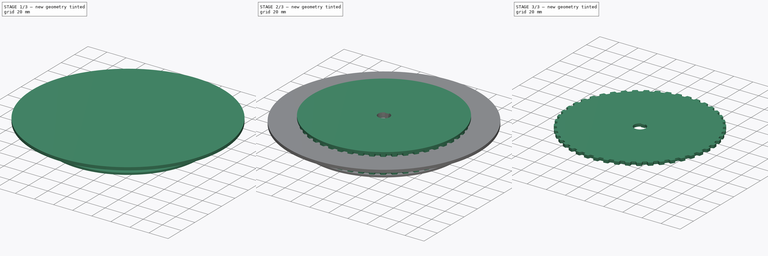
[diagram: build sequence overview — one tinted view per stage of 3, left to right]
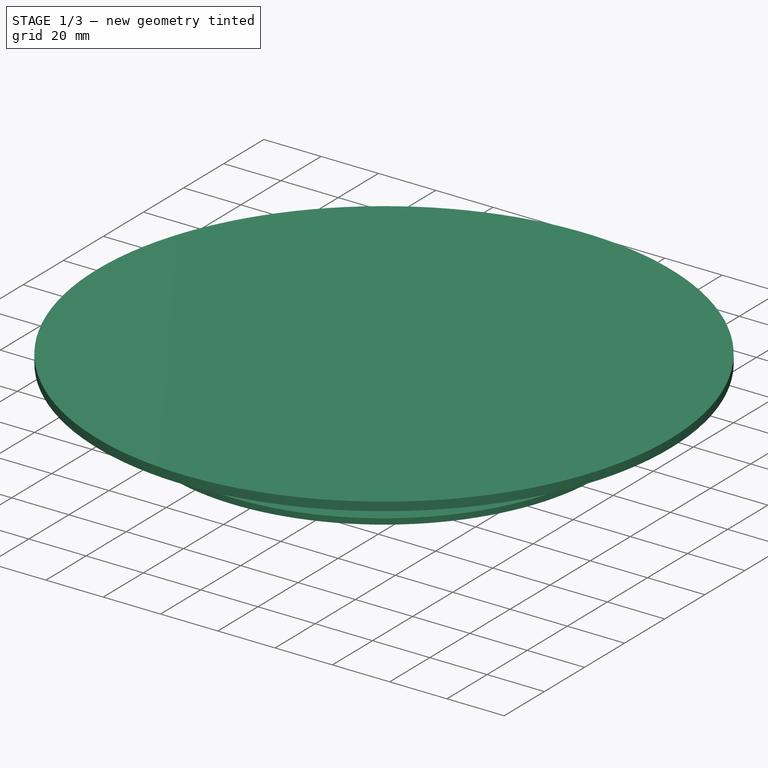
[diagram: stage 1 of 3 — iso view after this stage's code; geometry added in this stage tinted green]
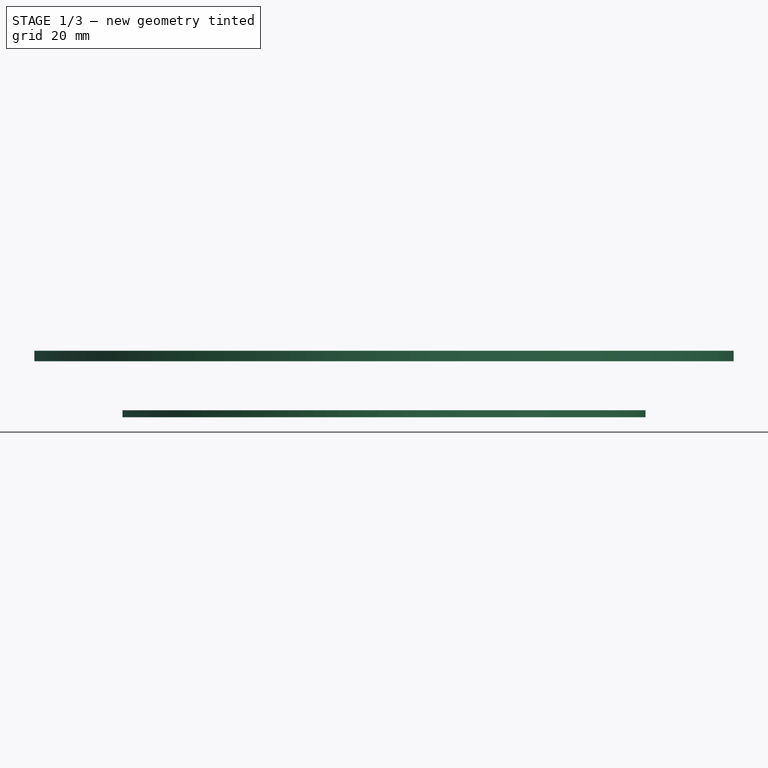
[diagram: stage 1 of 3 — front view after this stage's code; geometry added in this stage tinted green]
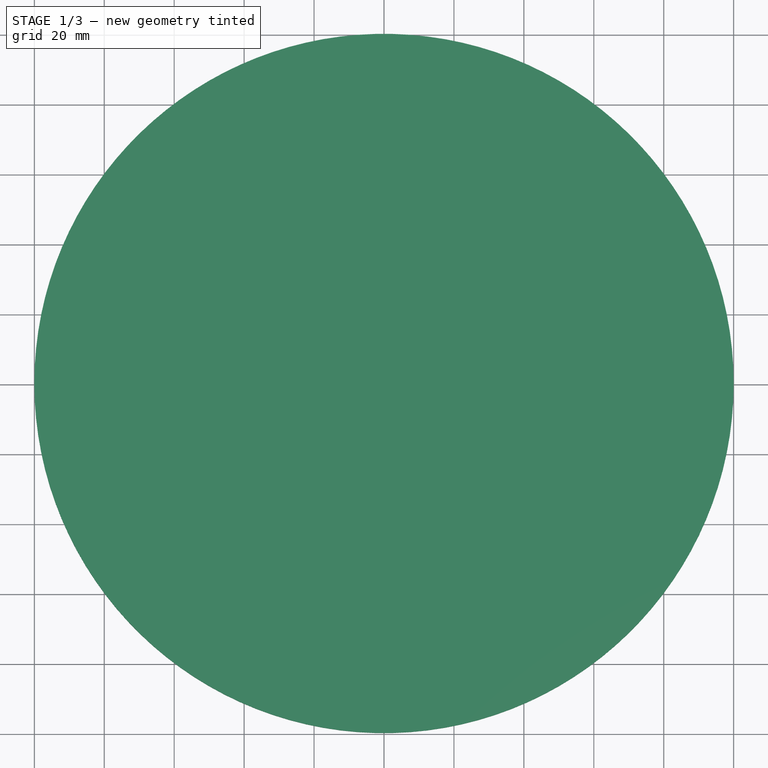
[diagram: stage 1 of 3 — top view after this stage's code; geometry added in this stage tinted green]
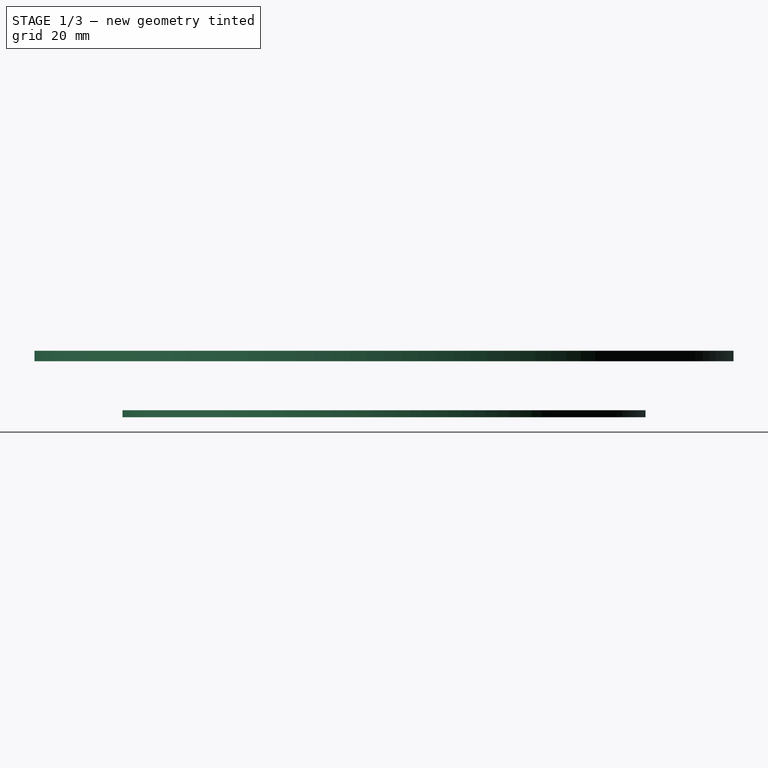
[diagram: stage 1 of 3 — right view after this stage's code; geometry added in this stage tinted green]
FCSTD DOCUMENT  (FreeCAD 0.21R31917 (Git))
Label: gear
License: All rights reserved
LicenseURL: http://en.wikipedia.org/wiki/All_rights_reserved
objects: Sketcher::SketchObject×6, Part::FeaturePython×3, PartDesign::Pad×2, Part::Compound×1, PartDesign::SubShapeBinder×1, PartDesign::LinearPattern×1, PartDesign::Pocket×1, PartDesign::Hole×1, PartDesign::Body×1, Part::Cylinder×1, Part::MultiCommon×1
note: 23 computed .brp shape members not serialized (recipe doc carries the construction recipe); baked Part::Feature solids carry a one-line shape summary decoded from their .brp

FEATURE [Sketcher::SketchObject] Sketch
  FullyConstrained = true
  MapMode = 5
  sketch-geometry (7):
    g0: LineSegment StartX=0 StartY=4.5 StartZ=0 EndX=1.74007 EndY=4.5 EndZ=0
    g1: LineSegment StartX=1.74007 StartY=4.5 StartZ=0 EndX=2.65 EndY=2 EndZ=0
    g2: LineSegment StartX=2.65 StartY=2 StartZ=0 EndX=5 EndY=2 EndZ=0
    g3: LineSegment StartX=5 StartY=2 StartZ=0 EndX=5 EndY=0 EndZ=0
    g4: LineSegment StartX=5 StartY=0 StartZ=0 EndX=0 EndY=0 EndZ=0
    g5: GeomPoint X=-2.65 Y=2 Z=0
    g6: GeomPoint X=-5 Y=0 Z=0
  constraints (17):
    c: PointOnObject(g0,g-2)
    c: Horizontal(g0)
    c: Coincident(g1,g0)
    c: Coincident(g2,g1)
    c: Horizontal(g2)
    c: Coincident(g3,g2)
    c: PointOnObject(g3,g-1)
    c: Vertical(g3)
    c: Coincident(g4,g3)
    c: Coincident(g4,g-1)
    c: Angle(g-2,g1) = 0.349066
    c: Symmetric(g1,g5,g-2)
    c: DistanceX(g5,g1) = 5.3
    c: DistanceY(g1,g0) = 2.5
    c: DistanceY(g0) = 4.5
    c: Symmetric(g6,g3,g-2)
    c: DistanceX(g6,g3) = 10
FEATURE [Part::FeaturePython] Mirror  label="Mirror of Sketch"  # WARN: FeaturePython — macro-defined, semantics opaque (R4)
  ExposePlacement = false
  FlipX = true
  FlipY = false
  FlipZ = false
  MarkerShape = 1
  MarkerSize = 0
  NumElements = 0
  Object = -> Sketch
  ObjectTraversal = 0
  Type = lattice2Mirror.LatticeMirror
  isLattice = 0
FEATURE [Part::Compound] Compound
  Links = -> [Sketch,Mirror]
FEATURE [Sketcher::SketchObject] Sketch001  label="teeth_sketch"
  FullyConstrained = true
  MapMode = 5
  expr: .Constraints.angle = 360deg / <<TeethArray>>.Count
  expr: .Constraints.r = 10mm / (.Constraints.angle / 180deg * pi)
  sketch-geometry (10):
    g0: LineSegment StartX=0 StartY=0 StartZ=0 EndX=9.83695 EndY=73.1443 EndZ=0
    g1: ArcOfCircle CenterX=0 CenterY=0 CenterZ=0 NormalX=0 NormalY=0 NormalZ=1 AngleXU=0 Radius=73.8028 StartAngle=1.43711 EndAngle=1.5708
    g2: ArcOfCircle CenterX=0 CenterY=0 CenterZ=0 NormalX=0 NormalY=0 NormalZ=1 AngleXU=0 Radius=73.8028 StartAngle=1.54122 EndAngle=1.5708
    g3: ArcOfCircle CenterX=0 CenterY=0 CenterZ=0 NormalX=0 NormalY=0 NormalZ=1 AngleXU=0 Radius=73.8028 StartAngle=1.43711 EndAngle=1.46668
    g4: LineSegment StartX=2.1822 StartY=73.7706 StartZ=0 EndX=2.95275 EndY=71.1132 EndZ=0
    g5: LineSegment StartX=2.95275 StartY=71.1132 StartZ=0 EndX=6.55205 EndY=70.8722 EndZ=0
    g6: LineSegment StartX=6.55205 StartY=70.8722 StartZ=0 EndX=7.66992 EndY=73.4032 EndZ=0
    g7: LineSegment StartX=4.7524 StartY=70.9927 StartZ=0 EndX=4.92948 EndY=73.638 EndZ=0
    g8: LineSegment StartX=2.1822 StartY=73.7706 StartZ=0 EndX=7.66992 EndY=73.4032 EndZ=0
    g9: GeomPoint X=0 Y=74.8028 Z=0
  constraints (27):
    c: Coincident(g0,g-1)
    c: Coincident(g1,g0)
    c: Coincident(g1,g0)
    c: PointOnObject(g1,g-2)
    c: Coincident(g2,g0)
    c: Coincident(g2,g1)
    c: Coincident(g3,g2)
    c: Coincident(g3,g0)
    c: Coincident(g4,g2)
    c: Coincident(g5,g4)
    c: Coincident(g6,g5)
    c: Coincident(g6,g3)
    c: Angle(g6,g4) = 0.698132
    c: PointOnObject(g7,g1)
    c: Symmetric(g5,g4,g7)
    c: Perpendicular(g7,g5)
    c: Equal(g6,g4)
    c: Distance(g3,g2) = 5.5
    c: Coincident(g8,g2)
    c: Coincident(g8,g3)
    c: Distance(g7,g8) = 2.6
    c: Symmetric(g3,g2,g7)
    c: Angle(g0,g-2) = 0.133685  'angle'
    c: Distance(g3,g2) = 9.85897
    c: PointOnObject(g9,g-2)
    c: DistanceY(g9) = 74.8028  'r'
    c: DistanceY(g2,g9) = 1
FEATURE [Part::FeaturePython] PolarArray  label="TeethArray"  # WARN: FeaturePython — macro-defined, semantics opaque (R4)
  Alignment = 0
  AttacherType = Attacher::AttachEngine3D
  CellStart = A1
  Count = 47
  DistributionLaw = 0
  EndInclusive = false
  ExposePlacement = false
  FlipX = false
  FlipZ = false
  GeneratorMode = 0
  MarkerShape = 1
  MarkerSize = 0
  NumElements = 47
  OrientMode = 2
  Radius = 25
  Reverse = false
  SpanEnd = 360
  SpanStart = 0
  Step = 7.65957
  Type = lattice2PolarArray2.PolarArray
  UseArcRadius = false
  UseArcRange = 0
  VSGVersion = 1
  Values = 0.0 | 7.659574468085107 | 15.319148936170214 | 22.97872340425532 | 30.638297872340427 | 38.297872340425535 | 45.95744680851064 | 53.61702127659575 | 61.276595744680854 | 68.93617021276596 | 76.59574468085107 | 84.25531914893618 | 91.91489361702128 | 99.57446808510639 | 107.2340425531915 | 114.8936170212766 | 122.55319148936171 | 130.2127659574468 | 137.87234042553192 | 145.53191489361703 | 153.19148936170214 | 160.85106382978725 | 168.51063829787236 | 176.17021276595744 | 183.82978723404256 | 191.48936170212767 | 199.14893617021278 | 206.8085106382979 | 214.468085106383 | 222.12765957446808 | 229.7872340425532 | 237.4468085106383 | 245.10638297872342 | 252.76595744680853 | 260.4255319148936 | 268.0851063829787 | 275.74468085106383 | 283.40425531914894 | 291.06382978723406 | 298.72340425531917 | 306.3829787234043 | 314.0425531914894 | 321.7021276595745 | 329.3617021276596 | 337.0212765957447 | 344.6808510638298 | 352.3404255319149
  ValuesSource = 2
  isLattice = 1
FEATURE [Part::FeaturePython] Populate  label="Populate PolarArray with Sketch001"  # WARN: FeaturePython — macro-defined, semantics opaque (R4)
  Copying = 0
  ExposePlacement = false
  MarkerShape = 1
  MarkerSize = 0
  NumElements = 0
  Object = -> Sketch001
  OutputCompounding = 1
  PlacementsTo = -> PolarArray
  Referencing = 1
  Type = lattice2PopulateCopies.LatticePopulateCopies
  isLattice = 0
FEATURE [PartDesign::SubShapeBinder] Binder
  BindCopyOnChange = 0
  BindMode = 0
  ClaimChildren = false
  Context = -> Body [Binder.]
  Fuse = false
  MakeFace = true
  OffsetFill = false
  OffsetIntersection = false
  OffsetJoinType = 0
  OffsetOpenResult = false
  PartialLoad = false
  Placement = pos=(0,0,2) rot=(0,0,1;0rad)
  Relative = false
  Support = -> [Populate]
  _Version = 2
  expr: .Placement.Base.z = Pad001.Length
FEATURE [Sketcher::SketchObject] Sketch002
  FullyConstrained = true
  MapMode = 5
  Support = -> [XY_Plane]
  expr: Constraints[1] = <<teeth_sketch>>.Constraints.r * 2
  sketch-geometry (1):
    g0: Circle CenterX=0 CenterY=0 CenterZ=0 NormalX=0 NormalY=0 NormalZ=1 AngleXU=0 Radius=74.8028
  constraints (2):
    c: Coincident(g0,g-1)
    c: Diameter(g0) = 149.606
FEATURE [PartDesign::Pad] Pad001
  Direction = (0,0,1)
  Length = 2
  Length2 = 10
  Profile = -> Sketch002
  ReferenceAxis = -> Sketch002 [N_Axis]
  Type = 0
FEATURE [Sketcher::SketchObject] Sketch005
  FullyConstrained = true
  MapMode = 5
  Support = -> [XY_Plane]
FEATURE [PartDesign::Body] Body
  Group = -> [Pad001,Binder,Pad,Sketch002,LinearPattern,Sketch003,Sketch005,Pocket,Sketch004,Hole]
  Origin = -> Origin
  Tip = -> Hole
FEATURE [Part::Cylinder] Cylinder
  Angle = 360
  AttacherType = Attacher::AttachEngine3D
  FirstAngle = 0
  Height = 3
  Placement = pos=(0,0,16) rot=(0,0,1;0rad)
  Radius = 100
  SecondAngle = 0
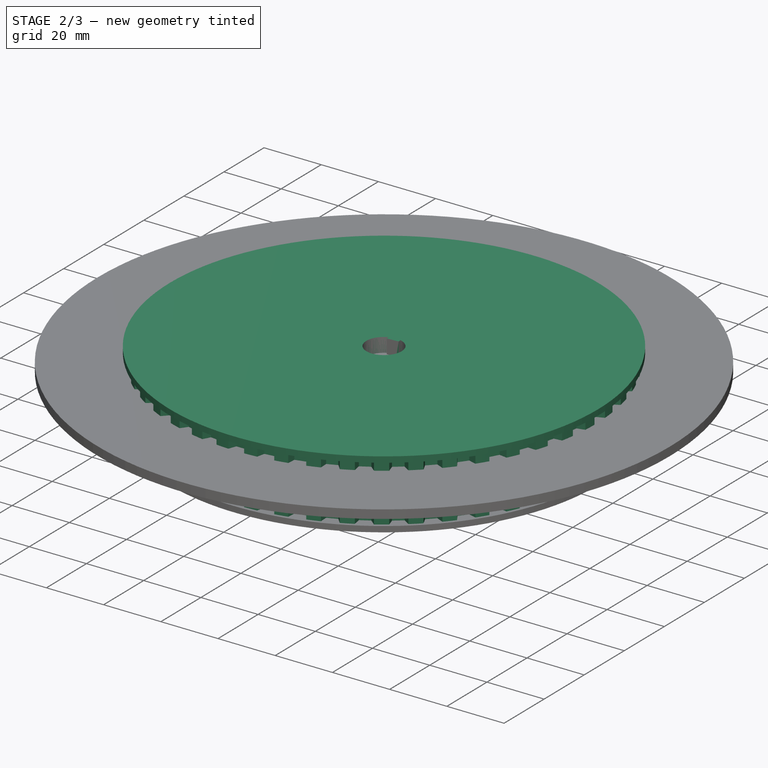
[diagram: stage 2 of 3 — iso view after this stage's code; geometry added in this stage tinted green]
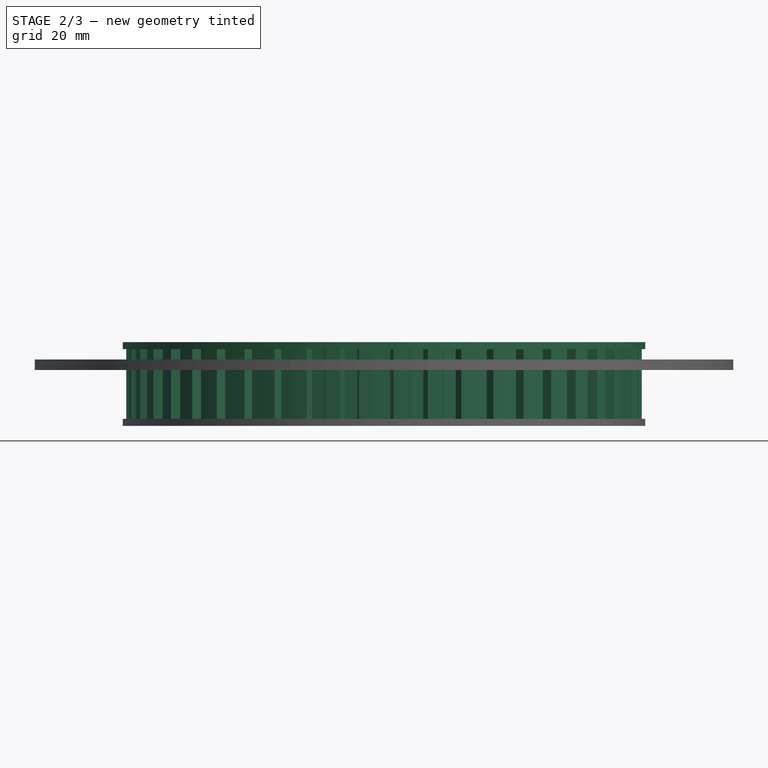
[diagram: stage 2 of 3 — front view after this stage's code; geometry added in this stage tinted green]
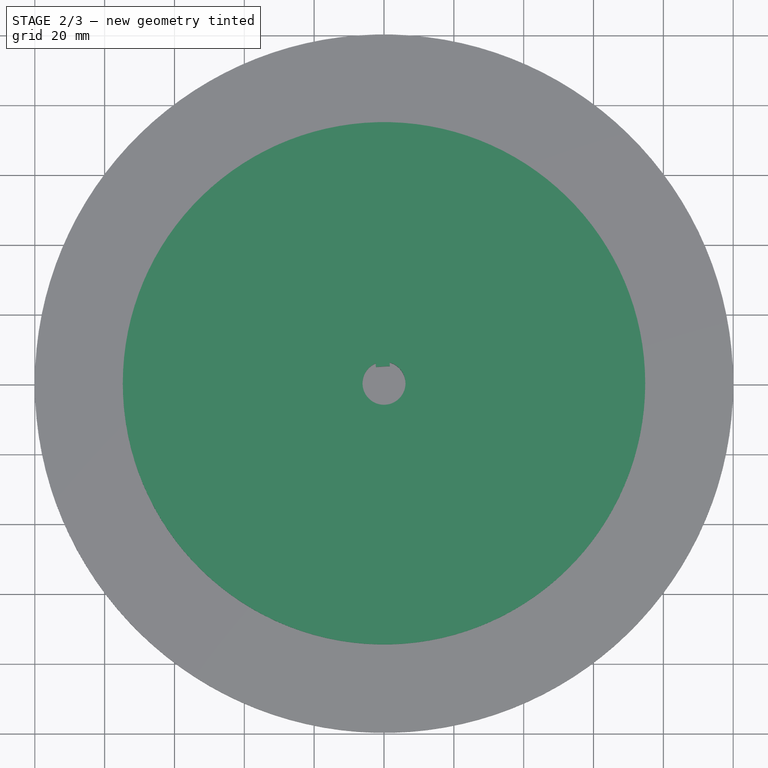
[diagram: stage 2 of 3 — top view after this stage's code; geometry added in this stage tinted green]
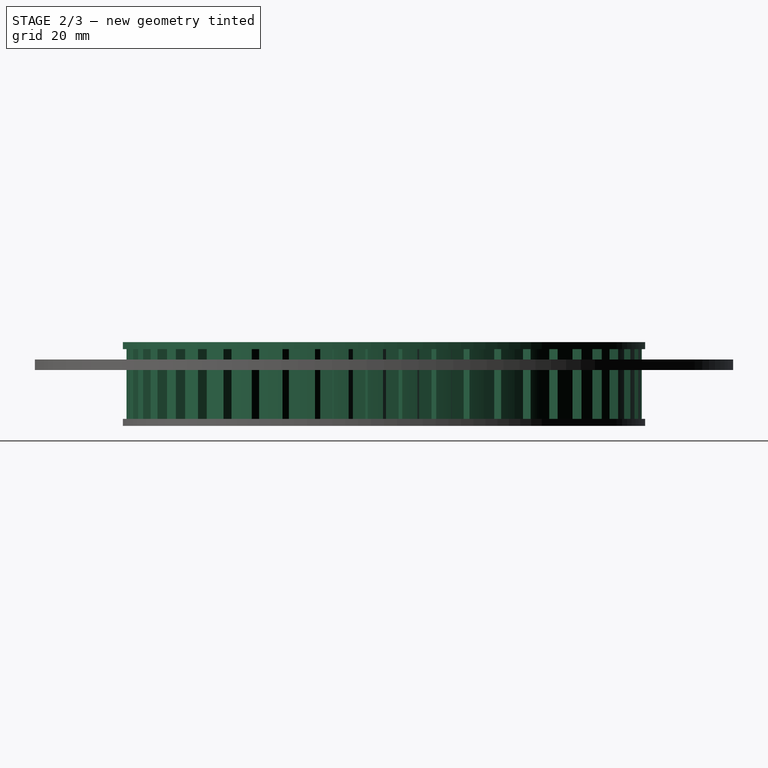
[diagram: stage 2 of 3 — right view after this stage's code; geometry added in this stage tinted green]
FEATURE [PartDesign::Pad] Pad
  BaseFeature = -> Pad001
  Direction = (0,0,1)
  Length = 20
  Length2 = 10
  Profile = -> Binder
  Refine = true
  Type = 0
FEATURE [PartDesign::LinearPattern] LinearPattern
  BaseFeature = -> Pad
  Direction = -> Sketch002 [N_Axis]
  Length = 22
  Occurrences = 2
  Originals = -> [Pad001]
  expr: Length = Pad.Length + Pad001.Length
FEATURE [Sketcher::SketchObject] Sketch003
  AttachmentOffset = pos=(0,0,0) rot=(0,0,1;0.066842rad)
  FullyConstrained = true
  MapMode = 5
  Placement = pos=(0,0,0) rot=(0,0,1;0.066842rad)
  Support = -> [XY_Plane]
  expr: .AttachmentOffset.Rotation.Angle = <<teeth_sketch>>.Constraints.angle / 2
  sketch-geometry (4):
    g0: ArcOfCircle CenterX=0 CenterY=0 CenterZ=0 NormalX=0 NormalY=0 NormalZ=1 AngleXU=0 Radius=6.15 StartAngle=1.90202 EndAngle=7.52275
    g1: LineSegment StartX=2 StartY=5.81571 StartZ=0 EndX=2 EndY=4.81571 EndZ=0
    g2: LineSegment StartX=2 StartY=4.81571 StartZ=0 EndX=-2 EndY=4.81571 EndZ=0
    g3: LineSegment StartX=-2 StartY=4.81571 StartZ=0 EndX=-2 EndY=5.81571 EndZ=0
  constraints (12):
    c: Coincident(g0,g-1)
    c: Diameter(g0) = 12.3
    c: Vertical(g1)
    c: Coincident(g1,g2)
    c: Horizontal(g2)
    c: Coincident(g2,g3)
    c: Vertical(g3)
    c: Coincident(g0,g1)
    c: Coincident(g0,g3)
    c: Symmetric(g0,g0,g-2)
    c: DistanceY(g1,g1) = 1
    c: DistanceX(g2,g2) = 4
FEATURE [PartDesign::Pocket] Pocket
  BaseFeature = -> LinearPattern
  Direction = (0,0,-1)
  Length = 5
  Length2 = 5
  Profile = -> Sketch003
  ReferenceAxis = -> Sketch003 [N_Axis]
  Reversed = true
  Type = 1
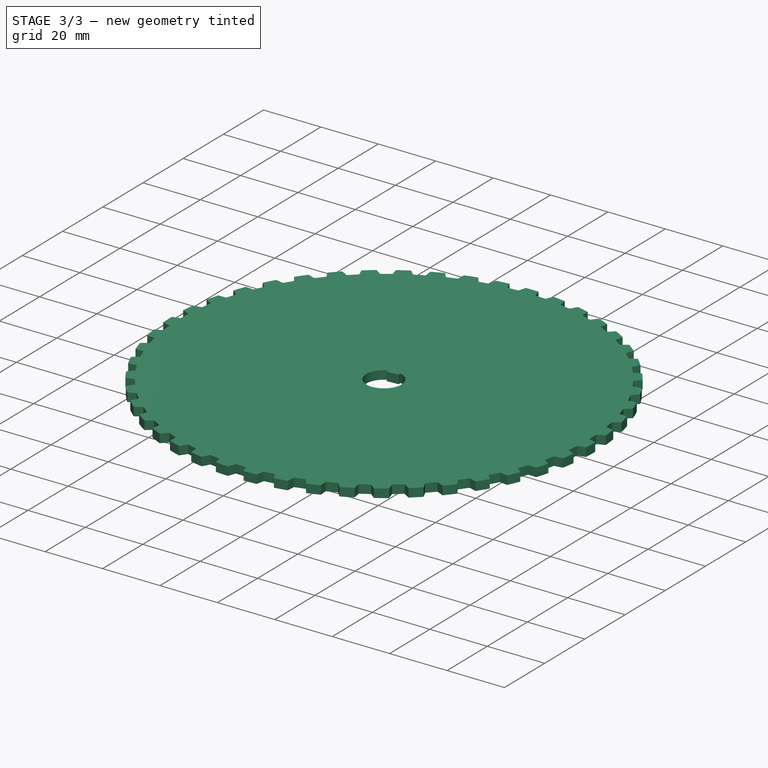
[diagram: stage 3 of 3 — iso view after this stage's code; geometry added in this stage tinted green]
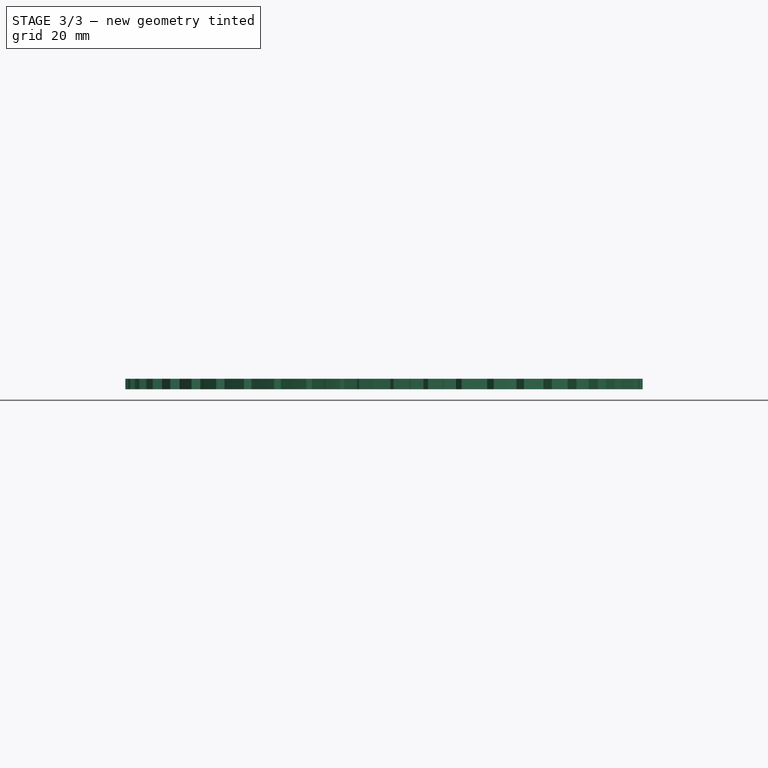
[diagram: stage 3 of 3 — front view after this stage's code; geometry added in this stage tinted green]
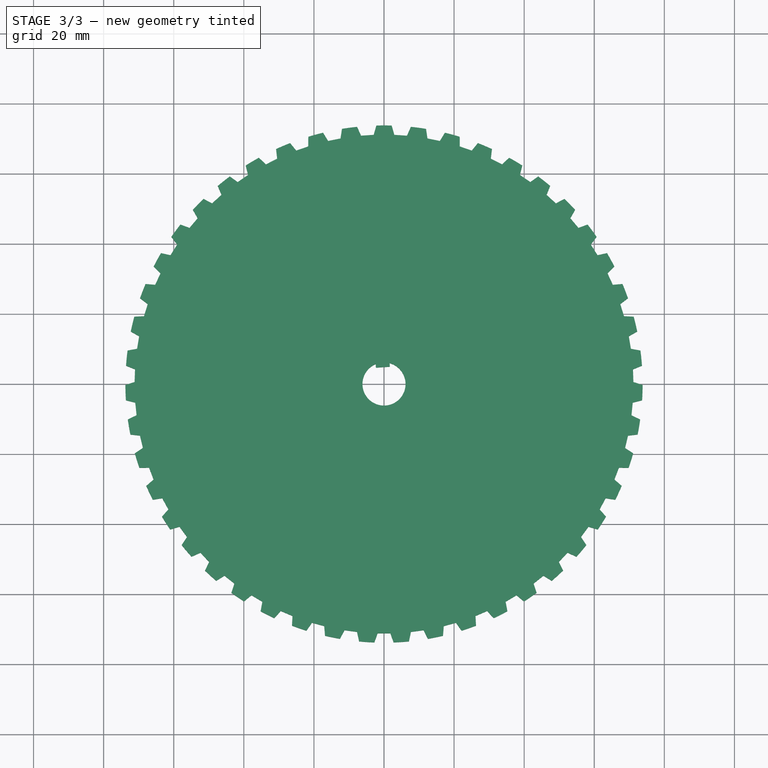
[diagram: stage 3 of 3 — top view after this stage's code; geometry added in this stage tinted green]
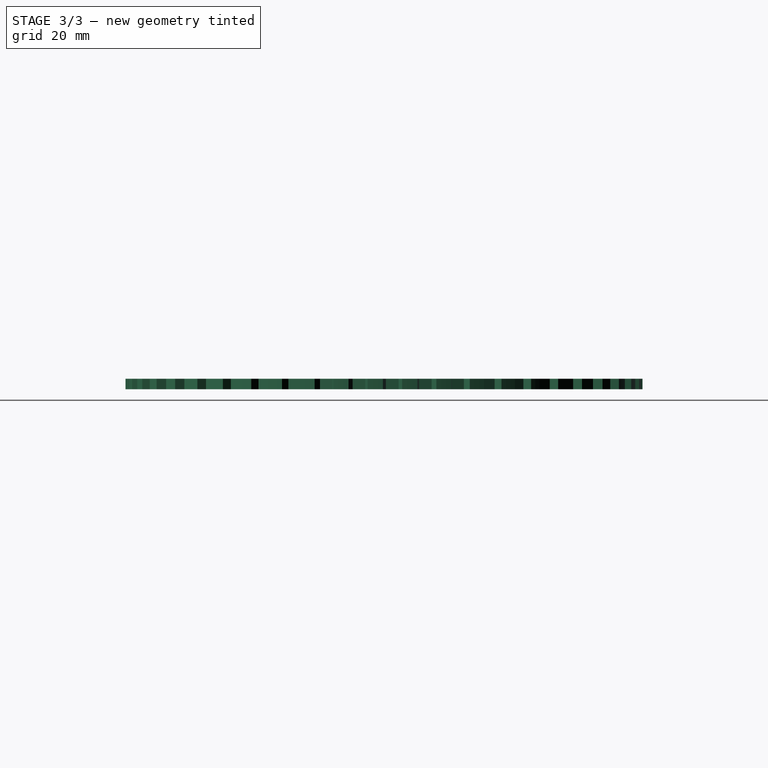
[diagram: stage 3 of 3 — right view after this stage's code; geometry added in this stage tinted green]
FEATURE [Sketcher::SketchObject] Sketch004
  AttachmentOffset = pos=(0,11,0) rot=(0,1,0;0.066842rad)
  FullyConstrained = true
  MapMode = 5
  Placement = pos=(0,-2.4e-15,11) rot=(0.998884,0.033396,0.033396;1.57191rad)
  Support = -> [XZ_Plane]
  expr: .AttachmentOffset.Base.y = (Pad.Length + Pad001.Length) / 2
  expr: .AttachmentOffset.Rotation.Angle = <<teeth_sketch>>.Constraints.angle / 2
  sketch-geometry (1):
    g0: Circle CenterX=0 CenterY=0 CenterZ=0 NormalX=0 NormalY=0 NormalZ=1 AngleXU=0 Radius=2
  constraints (2):
    c: Coincident(g0,g-1)
    c: Diameter(g0) = 4
FEATURE [PartDesign::Hole] Hole
  BaseFeature = -> Pocket
  CustomThreadClearance = 0
  Depth = 121.1
  DepthType = 1
  Diameter = 4
  DrillForDepth = false
  DrillPoint = 1
  DrillPointAngle = 118
  HoleCutCountersinkAngle = 90
  HoleCutCustomValues = false
  HoleCutDepth = 0
  HoleCutDiameter = 6.1
  HoleCutType = 0
  ModelThread = false
  Profile = -> Sketch004
  Tapered = false
  TaperedAngle = 90
  ThreadClass = 0
  ThreadDepth = 121.1
  ThreadDepthType = 0
  ThreadDirection = 0
  ThreadFit = 0
  ThreadSize = 0
  ThreadType = 0
  Threaded = false
  UseCustomThreadClearance = false
FEATURE [Part::MultiCommon] Common
  Shapes = -> [Cylinder,Body]
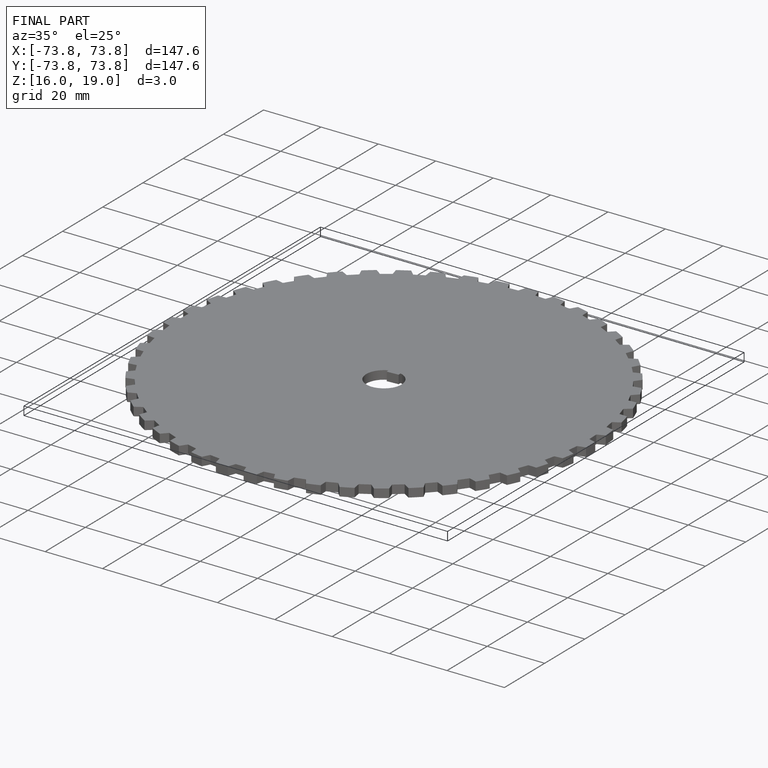
[diagram: finished part — iso view with bounding-box wireframe]
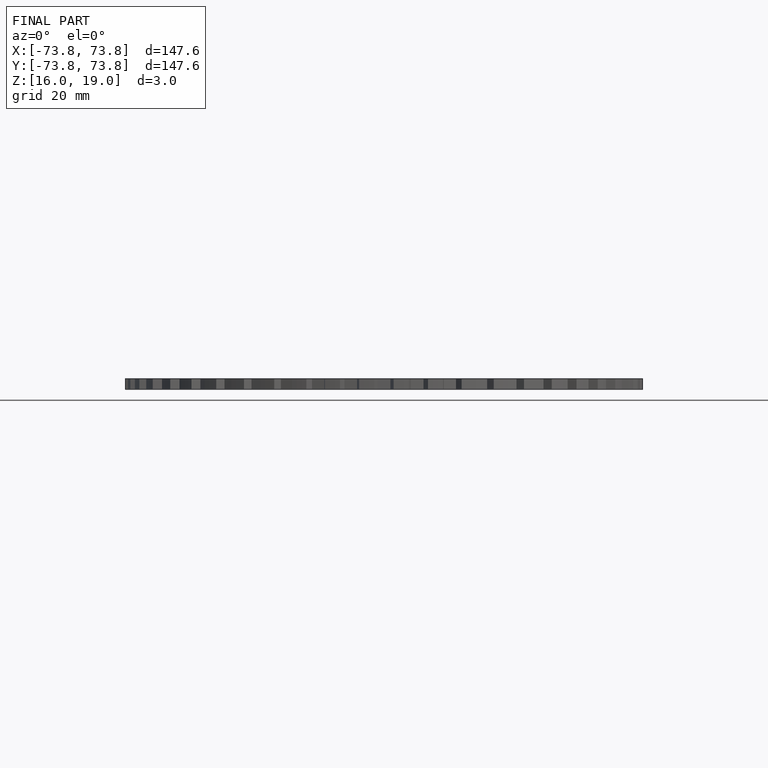
[diagram: finished part — front view with bounding-box wireframe]
